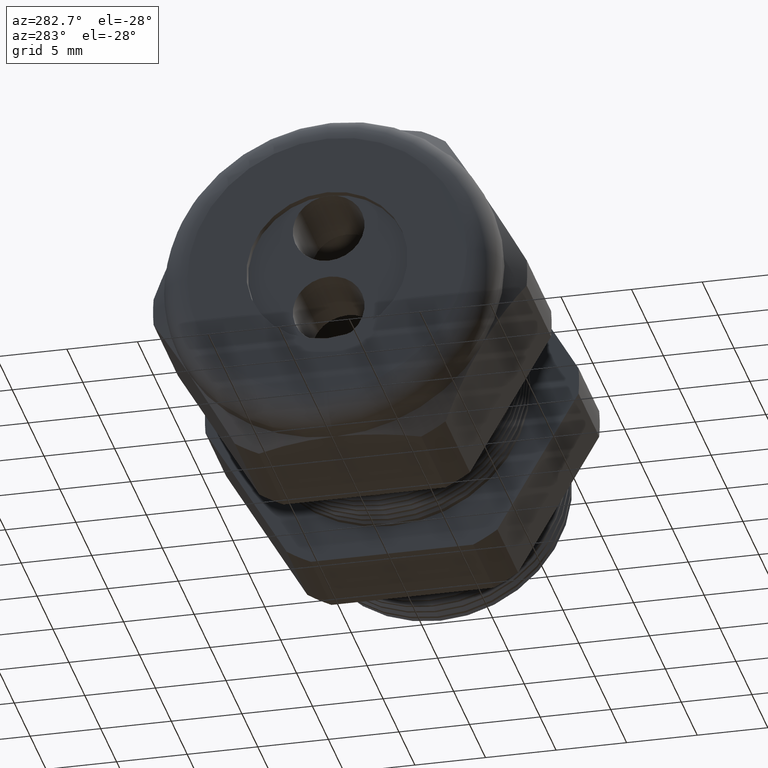
[diagram: clean part render]
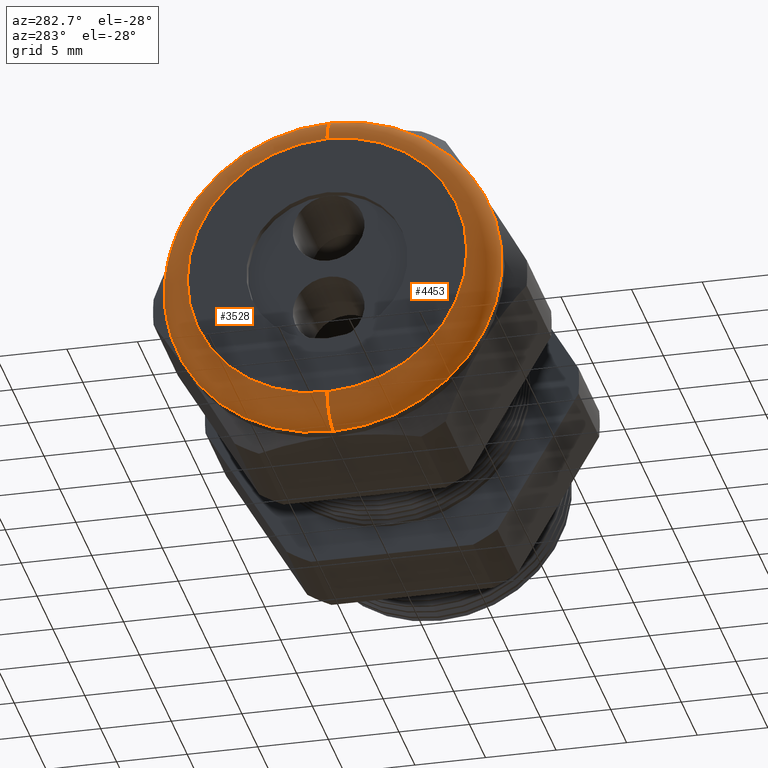
[diagram: same view with one multi-face feature highlighted, each face labeled with its STEP entity id]
A machine part, auxiliary view. The highlighted faces form ONE feature: a constant-radius fillet chain: 2 tangent blend faces with common blend radius 2.032 mm. The faces share edges in the B-rep.
Their STEP definitions:
[1] entity #3528 (Torus):
#788 = DIRECTION ( 'NONE',  ( 0.0000000000000000000, 0.0000000000000000000, 1.000000000000000000 ) ) ;
#789 = DIRECTION ( 'NONE',  ( 1.000000000000000000, 0.0000000000000000000, 0.0000000000000000000 ) ) ;
#790 = CARTESIAN_POINT ( 'NONE',  ( -1.290000000000000300, 0.0000000000000000000, 0.0000000000000000000 ) ) ;
#791 = AXIS2_PLACEMENT_3D ( 'NONE', #790, #789, #788 ) ;
#792 = CIRCLE ( 'NONE', #791, 0.4699999999999999200 ) ;
#793 = DIRECTION ( 'NONE',  ( 0.0000000000000000000, 0.0000000000000000000, 1.000000000000000000 ) ) ;
#794 = DIRECTION ( 'NONE',  ( -1.000000000000000000, 0.0000000000000000000, 0.0000000000000000000 ) ) ;
#795 = AXIS2_PLACEMENT_3D ( 'NONE', #797, #794, #793 ) ;
#796 = TOROIDAL_SURFACE ( 'NONE', #795, 0.3899999999999999600, 0.08000000000000000200 ) ;
#797 = CARTESIAN_POINT ( 'NONE',  ( -1.290000000000000300, 0.0000000000000000000, 0.0000000000000000000 ) ) ;
#798 = FACE_OUTER_BOUND ( 'NONE', #3529, .T. ) ;
#813 = CARTESIAN_POINT ( 'NONE',  ( -1.290000000000000300, 5.755839955992558400E-017, 0.4699999999999999200 ) ) ;
#814 = CARTESIAN_POINT ( 'NONE',  ( -1.290000000000000300, 0.0000000000000000000, -0.4699999999999999200 ) ) ;
#816 = DIRECTION ( 'NONE',  ( 0.0000000000000000000, 0.0000000000000000000, -1.000000000000000000 ) ) ;
#817 = DIRECTION ( 'NONE',  ( 0.0000000000000000000, -1.000000000000000000, 0.0000000000000000000 ) ) ;
#818 = CARTESIAN_POINT ( 'NONE',  ( -1.290000000000000300, 0.0000000000000000000, 0.3899999999999999600 ) ) ;
#819 = AXIS2_PLACEMENT_3D ( 'NONE', #818, #817, #816 ) ;
#824 = CIRCLE ( 'NONE', #819, 0.07999999999999996000 ) ;
#866 = DIRECTION ( 'NONE',  ( 0.0000000000000000000, -1.224646799147353900E-016, 1.000000000000000000 ) ) ;
#867 = DIRECTION ( 'NONE',  ( 0.0000000000000000000, 1.000000000000000000, 1.224646799147353200E-016 ) ) ;
#868 = CARTESIAN_POINT ( 'NONE',  ( -1.290000000000000300, 4.776122516674676800E-017, -0.3899999999999999600 ) ) ;
#869 = AXIS2_PLACEMENT_3D ( 'NONE', #868, #867, #866 ) ;
#870 = CIRCLE ( 'NONE', #869, 0.07999999999999996000 ) ;
#872 = CARTESIAN_POINT ( 'NONE',  ( -1.370000000000000100, 5.265981236333617600E-017, -0.3899999999999999600 ) ) ;
#873 = CARTESIAN_POINT ( 'NONE',  ( -1.370000000000000100, 0.0000000000000000000, 0.3899999999999999600 ) ) ;
#874 = DIRECTION ( 'NONE',  ( 0.0000000000000000000, 0.0000000000000000000, 1.000000000000000000 ) ) ;
#875 = DIRECTION ( 'NONE',  ( -1.000000000000000000, 0.0000000000000000000, 0.0000000000000000000 ) ) ;
#876 = CARTESIAN_POINT ( 'NONE',  ( -1.370000000000000100, 0.0000000000000000000, 0.0000000000000000000 ) ) ;
#877 = AXIS2_PLACEMENT_3D ( 'NONE', #876, #875, #874 ) ;
#878 = CIRCLE ( 'NONE', #877, 0.3899999999999999600 ) ;
#3523 = VERTEX_POINT ( 'NONE', #814 ) ;
#3524 = VERTEX_POINT ( 'NONE', #813 ) ;
#3528 = ADVANCED_FACE ( 'NONE', ( #798 ), #796, .T. ) ;
#3529 = EDGE_LOOP ( 'NONE', ( #3530, #3560, #3550, #3548 ) ) ;
#3530 = ORIENTED_EDGE ( 'NONE', *, *, #3531, .F. ) ;
#3531 = EDGE_CURVE ( 'NONE', #3523, #3524, #792, .T. ) ;
#3548 = ORIENTED_EDGE ( 'NONE', *, *, #3549, .F. ) ;
#3549 = EDGE_CURVE ( 'NONE', #3524, #3552, #824, .T. ) ;
#3550 = ORIENTED_EDGE ( 'NONE', *, *, #3551, .F. ) ;
#3551 = EDGE_CURVE ( 'NONE', #3552, #3553, #878, .T. ) ;
#3552 = VERTEX_POINT ( 'NONE', #873 ) ;
#3553 = VERTEX_POINT ( 'NONE', #872 ) ;
#3558 = EDGE_CURVE ( 'NONE', #3523, #3553, #870, .T. ) ;
#3560 = ORIENTED_EDGE ( 'NONE', *, *, #3558, .T. ) ;
[2] entity #4453 (Torus):
#813 = CARTESIAN_POINT ( 'NONE',  ( -1.290000000000000300, 5.755839955992558400E-017, 0.4699999999999999200 ) ) ;
#814 = CARTESIAN_POINT ( 'NONE',  ( -1.290000000000000300, 0.0000000000000000000, -0.4699999999999999200 ) ) ;
#816 = DIRECTION ( 'NONE',  ( 0.0000000000000000000, 0.0000000000000000000, -1.000000000000000000 ) ) ;
#817 = DIRECTION ( 'NONE',  ( 0.0000000000000000000, -1.000000000000000000, 0.0000000000000000000 ) ) ;
#818 = CARTESIAN_POINT ( 'NONE',  ( -1.290000000000000300, 0.0000000000000000000, 0.3899999999999999600 ) ) ;
#819 = AXIS2_PLACEMENT_3D ( 'NONE', #818, #817, #816 ) ;
#824 = CIRCLE ( 'NONE', #819, 0.07999999999999996000 ) ;
#866 = DIRECTION ( 'NONE',  ( 0.0000000000000000000, -1.224646799147353900E-016, 1.000000000000000000 ) ) ;
#867 = DIRECTION ( 'NONE',  ( 0.0000000000000000000, 1.000000000000000000, 1.224646799147353200E-016 ) ) ;
#868 = CARTESIAN_POINT ( 'NONE',  ( -1.290000000000000300, 4.776122516674676800E-017, -0.3899999999999999600 ) ) ;
#869 = AXIS2_PLACEMENT_3D ( 'NONE', #868, #867, #866 ) ;
#870 = CIRCLE ( 'NONE', #869, 0.07999999999999996000 ) ;
#872 = CARTESIAN_POINT ( 'NONE',  ( -1.370000000000000100, 5.265981236333617600E-017, -0.3899999999999999600 ) ) ;
#873 = CARTESIAN_POINT ( 'NONE',  ( -1.370000000000000100, 0.0000000000000000000, 0.3899999999999999600 ) ) ;
#2217 = DIRECTION ( 'NONE',  ( 0.0000000000000000000, 0.0000000000000000000, 1.000000000000000000 ) ) ;
#2218 = DIRECTION ( 'NONE',  ( 1.000000000000000000, 0.0000000000000000000, 0.0000000000000000000 ) ) ;
#2219 = CARTESIAN_POINT ( 'NONE',  ( -1.290000000000000300, 0.0000000000000000000, 0.0000000000000000000 ) ) ;
#2220 = AXIS2_PLACEMENT_3D ( 'NONE', #2219, #2218, #2217 ) ;
#2221 = CIRCLE ( 'NONE', #2220, 0.4699999999999999200 ) ;
#2347 = DIRECTION ( 'NONE',  ( 0.0000000000000000000, 0.0000000000000000000, 1.000000000000000000 ) ) ;
#2348 = DIRECTION ( 'NONE',  ( -1.000000000000000000, 0.0000000000000000000, 0.0000000000000000000 ) ) ;
#2349 = CARTESIAN_POINT ( 'NONE',  ( -1.370000000000000100, 0.0000000000000000000, 0.0000000000000000000 ) ) ;
#2350 = AXIS2_PLACEMENT_3D ( 'NONE', #2349, #2348, #2347 ) ;
#2351 = CIRCLE ( 'NONE', #2350, 0.3899999999999999600 ) ;
#2580 = DIRECTION ( 'NONE',  ( 0.0000000000000000000, 0.0000000000000000000, 1.000000000000000000 ) ) ;
#2581 = DIRECTION ( 'NONE',  ( -1.000000000000000000, 0.0000000000000000000, 0.0000000000000000000 ) ) ;
#2582 = CARTESIAN_POINT ( 'NONE',  ( -1.290000000000000300, 0.0000000000000000000, 0.0000000000000000000 ) ) ;
#2583 = AXIS2_PLACEMENT_3D ( 'NONE', #2582, #2581, #2580 ) ;
#2584 = TOROIDAL_SURFACE ( 'NONE', #2583, 0.3899999999999999600, 0.08000000000000000200 ) ;
#2585 = FACE_OUTER_BOUND ( 'NONE', #4454, .T. ) ;
#3523 = VERTEX_POINT ( 'NONE', #814 ) ;
#3524 = VERTEX_POINT ( 'NONE', #813 ) ;
#3549 = EDGE_CURVE ( 'NONE', #3524, #3552, #824, .T. ) ;
#3552 = VERTEX_POINT ( 'NONE', #873 ) ;
#3553 = VERTEX_POINT ( 'NONE', #872 ) ;
#3558 = EDGE_CURVE ( 'NONE', #3523, #3553, #870, .T. ) ;
#4242 = EDGE_CURVE ( 'NONE', #3524, #3523, #2221, .T. ) ;
#4310 = EDGE_CURVE ( 'NONE', #3553, #3552, #2351, .T. ) ;
#4453 = ADVANCED_FACE ( 'NONE', ( #2585 ), #2584, .T. ) ;
#4454 = EDGE_LOOP ( 'NONE', ( #4455, #4456, #4511, #4512 ) ) ;
#4455 = ORIENTED_EDGE ( 'NONE', *, *, #3558, .F. ) ;
#4456 = ORIENTED_EDGE ( 'NONE', *, *, #4242, .F. ) ;
#4511 = ORIENTED_EDGE ( 'NONE', *, *, #3549, .T. ) ;
#4512 = ORIENTED_EDGE ( 'NONE', *, *, #4310, .F. ) ;